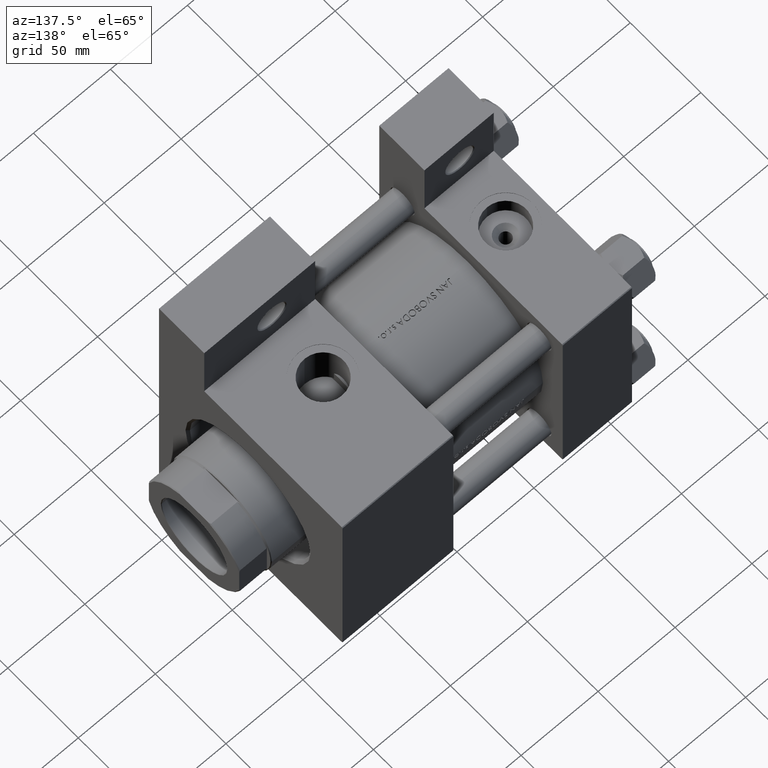
[diagram: clean part render]
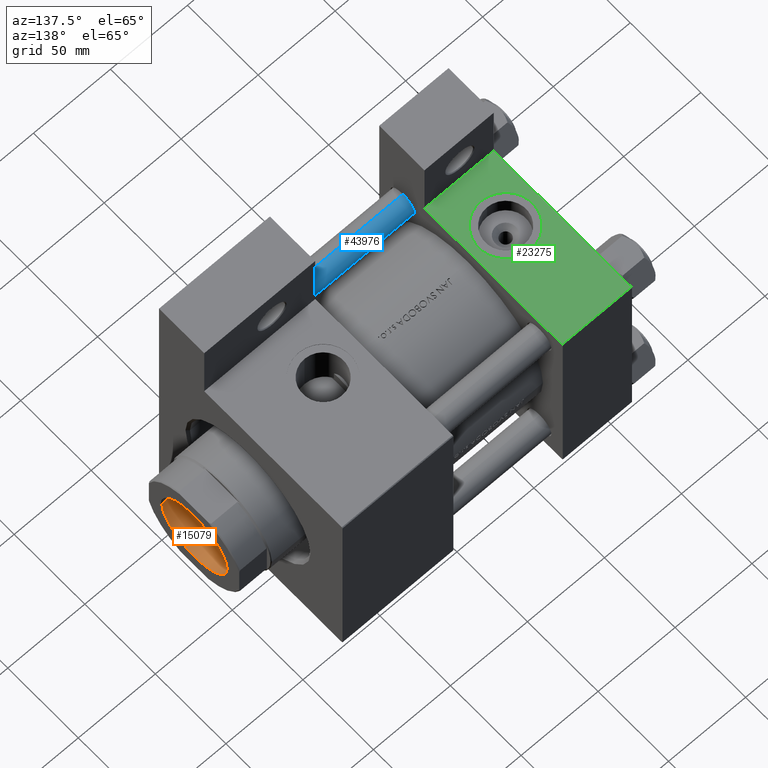
[diagram: same view with three faces highlighted in distinct colors, each labeled with its STEP entity id]
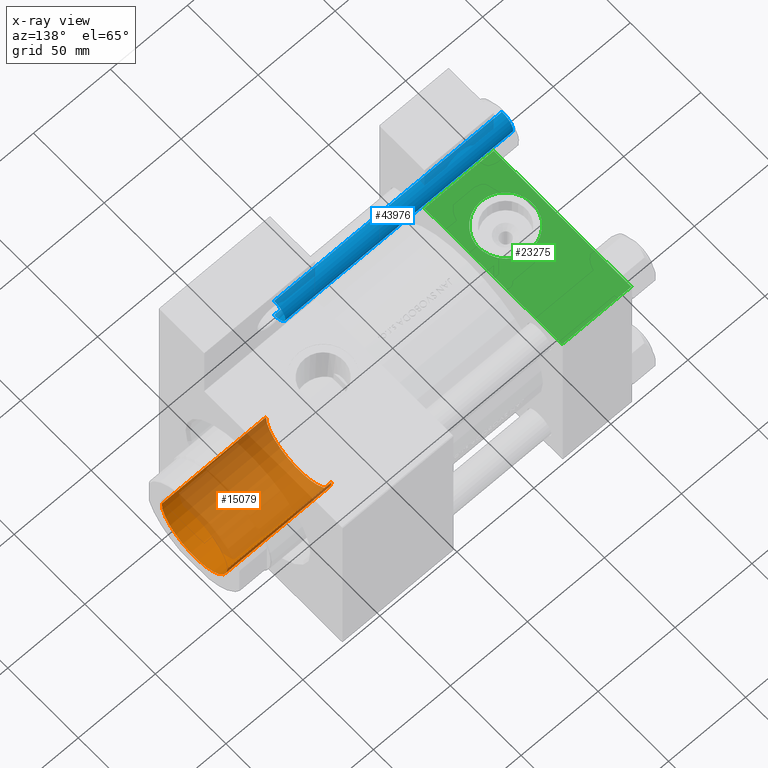
[diagram: x-ray of the same camera — body ghosted, the three highlighted faces saturated]
A machine part, auxiliary view with three faces highlighted in distinct colors.
The next image is the same camera in x-ray (body ghosted, the three faces saturated) — at least one of them is partly hidden behind the body in this view.
Their STEP definitions:

[orange] entity #15079 — the highlighted cylindrical surface (partial cylindrical patch) has radius 23.25 mm, axis along (1, 0, 0).
#539 = CARTESIAN_POINT ( 'NONE',  ( -23.24999999999999289, 2.847303808017595350E-15, 178.0000000000000000 ) ) ;
#775 = DIRECTION ( 'NONE',  ( -0.000000000000000000, -0.000000000000000000, 1.000000000000000000 ) ) ;
#3062 = EDGE_CURVE ( 'NONE', #25279, #35961, #19497, .T. ) ;
#9423 = ORIENTED_EDGE ( 'NONE', *, *, #14238, .T. ) ;
#9739 = ORIENTED_EDGE ( 'NONE', *, *, #30758, .F. ) ;
#10433 = CARTESIAN_POINT ( 'NONE',  ( 0.000000000000000000, 0.000000000000000000, 178.0000000000000000 ) ) ;
#11199 = VECTOR ( 'NONE', #12385, 1000.000000000000000 ) ;
#12001 = CARTESIAN_POINT ( 'NONE',  ( 23.24999999999999289, 0.000000000000000000, 177.7000000000000171 ) ) ;
#12121 = EDGE_LOOP ( 'NONE', ( #9739, #21138, #9423, #41429 ) ) ;
#12385 = DIRECTION ( 'NONE',  ( -0.000000000000000000, -0.000000000000000000, 1.000000000000000000 ) ) ;
#12678 = VERTEX_POINT ( 'NONE', #47787 ) ;
#13175 = AXIS2_PLACEMENT_3D ( 'NONE', #17903, #14006, #40046 ) ;
#14006 = DIRECTION ( 'NONE',  ( 0.000000000000000000, 0.000000000000000000, 1.000000000000000000 ) ) ;
#14238 = EDGE_CURVE ( 'NONE', #45267, #25279, #35250, .T. ) ;
#15079 = ADVANCED_FACE ( 'NONE', ( #28914 ), #47160, .F. ) ;
#16077 = LINE ( 'NONE', #539, #23868 ) ;
#16911 = CARTESIAN_POINT ( 'NONE',  ( 0.000000000000000000, 0.000000000000000000, 109.9999999999999858 ) ) ;
#17903 = CARTESIAN_POINT ( 'NONE',  ( 0.000000000000000000, 0.000000000000000000, 177.7000000000000171 ) ) ;
#19497 = CIRCLE ( 'NONE', #13175, 23.24999999999999289 ) ;
#21138 = ORIENTED_EDGE ( 'NONE', *, *, #32403, .F. ) ;
#23868 = VECTOR ( 'NONE', #775, 1000.000000000000000 ) ;
#25199 = CARTESIAN_POINT ( 'NONE',  ( 23.24999999999998579, 0.000000000000000000, 109.9999999999999858 ) ) ;
#25279 = VERTEX_POINT ( 'NONE', #12001 ) ;
#28670 = DIRECTION ( 'NONE',  ( -0.000000000000000000, -0.000000000000000000, 1.000000000000000000 ) ) ;
#28914 = FACE_OUTER_BOUND ( 'NONE', #12121, .T. ) ;
#30758 = EDGE_CURVE ( 'NONE', #12678, #35961, #16077, .T. ) ;
#30875 = CARTESIAN_POINT ( 'NONE',  ( 23.24999999999999289, 0.000000000000000000, 178.0000000000000000 ) ) ;
#31454 = AXIS2_PLACEMENT_3D ( 'NONE', #10433, #28670, #40116 ) ;
#31761 = DIRECTION ( 'NONE',  ( -0.000000000000000000, -0.000000000000000000, 1.000000000000000000 ) ) ;
#32403 = EDGE_CURVE ( 'NONE', #45267, #12678, #37115, .T. ) ;
#35250 = LINE ( 'NONE', #30875, #11199 ) ;
#35961 = VERTEX_POINT ( 'NONE', #39747 ) ;
#37115 = CIRCLE ( 'NONE', #47194, 23.24999999999998579 ) ;
#39747 = CARTESIAN_POINT ( 'NONE',  ( -23.24999999999999289, 2.847303808017595350E-15, 177.7000000000000171 ) ) ;
#40046 = DIRECTION ( 'NONE',  ( 1.000000000000000000, 0.000000000000000000, 0.000000000000000000 ) ) ;
#40116 = DIRECTION ( 'NONE',  ( 1.000000000000000000, 0.000000000000000000, 0.000000000000000000 ) ) ;
#41429 = ORIENTED_EDGE ( 'NONE', *, *, #3062, .T. ) ;
#45267 = VERTEX_POINT ( 'NONE', #25199 ) ;
#46582 = DIRECTION ( 'NONE',  ( 1.000000000000000000, 0.000000000000000000, 0.000000000000000000 ) ) ;
#47160 = CYLINDRICAL_SURFACE ( 'NONE', #31454, 23.24999999999999289 ) ;
#47194 = AXIS2_PLACEMENT_3D ( 'NONE', #16911, #31761, #46582 ) ;
#47787 = CARTESIAN_POINT ( 'NONE',  ( -23.24999999999998579, 2.847303808017594561E-15, 109.9999999999999858 ) ) ;

[blue] entity #43976 — the highlighted cylindrical surface (edge-blend (fillet) strip) has radius 8 mm, axis along (1, 0, 0).
#2651 = CARTESIAN_POINT ( 'NONE',  ( -8.000000000000000000, 0.000000000000000000, 148.5000000000000000 ) ) ;
#3817 = AXIS2_PLACEMENT_3D ( 'NONE', #22808, #25985, #30103 ) ;
#5956 = EDGE_CURVE ( 'NONE', #32979, #7952, #41818, .T. ) ;
#6761 = EDGE_CURVE ( 'NONE', #32943, #34715, #45543, .T. ) ;
#7952 = VERTEX_POINT ( 'NONE', #28802 ) ;
#8485 = CIRCLE ( 'NONE', #3817, 8.000000000000000000 ) ;
#9062 = CARTESIAN_POINT ( 'NONE',  ( 8.000000000000000000, 9.797174393178825657E-16, 149.0000000000000000 ) ) ;
#9693 = DIRECTION ( 'NONE',  ( 1.000000000000000000, 0.000000000000000000, 0.000000000000000000 ) ) ;
#11654 = DIRECTION ( 'NONE',  ( -0.000000000000000000, -0.000000000000000000, -1.000000000000000000 ) ) ;
#13171 = DIRECTION ( 'NONE',  ( -0.000000000000000000, -0.000000000000000000, -1.000000000000000000 ) ) ;
#17929 = CYLINDRICAL_SURFACE ( 'NONE', #28826, 8.000000000000000000 ) ;
#18395 = CIRCLE ( 'NONE', #31586, 8.000000000000000000 ) ;
#18737 = VECTOR ( 'NONE', #11654, 1000.000000000000000 ) ;
#22808 = CARTESIAN_POINT ( 'NONE',  ( 0.000000000000000000, 0.000000000000000000, 0.5000000000000281997 ) ) ;
#23140 = ORIENTED_EDGE ( 'NONE', *, *, #27874, .T. ) ;
#24055 = DIRECTION ( 'NONE',  ( 0.000000000000000000, 0.000000000000000000, -1.000000000000000000 ) ) ;
#25985 = DIRECTION ( 'NONE',  ( -0.000000000000000000, -0.000000000000000000, 1.000000000000000000 ) ) ;
#27635 = ORIENTED_EDGE ( 'NONE', *, *, #6761, .F. ) ;
#27874 = EDGE_CURVE ( 'NONE', #32943, #32979, #18395, .T. ) ;
#28802 = CARTESIAN_POINT ( 'NONE',  ( -8.000000000000000000, 0.000000000000000000, 0.5000000000000281997 ) ) ;
#28826 = AXIS2_PLACEMENT_3D ( 'NONE', #32779, #47593, #33025 ) ;
#30103 = DIRECTION ( 'NONE',  ( 1.000000000000000000, 0.000000000000000000, 0.000000000000000000 ) ) ;
#31586 = AXIS2_PLACEMENT_3D ( 'NONE', #35497, #24055, #9693 ) ;
#32779 = CARTESIAN_POINT ( 'NONE',  ( 0.000000000000000000, 0.000000000000000000, 149.0000000000000000 ) ) ;
#32943 = VERTEX_POINT ( 'NONE', #38878 ) ;
#32979 = VERTEX_POINT ( 'NONE', #2651 ) ;
#33025 = DIRECTION ( 'NONE',  ( -1.000000000000000000, 0.000000000000000000, 0.000000000000000000 ) ) ;
#34176 = ORIENTED_EDGE ( 'NONE', *, *, #5956, .T. ) ;
#34715 = VERTEX_POINT ( 'NONE', #43687 ) ;
#35497 = CARTESIAN_POINT ( 'NONE',  ( 0.000000000000000000, 0.000000000000000000, 148.5000000000000000 ) ) ;
#37686 = CARTESIAN_POINT ( 'NONE',  ( -8.000000000000000000, 0.000000000000000000, 149.0000000000000000 ) ) ;
#38626 = EDGE_CURVE ( 'NONE', #7952, #34715, #8485, .T. ) ;
#38878 = CARTESIAN_POINT ( 'NONE',  ( 8.000000000000000000, 9.797174393178825657E-16, 148.5000000000000000 ) ) ;
#40310 = FACE_OUTER_BOUND ( 'NONE', #47059, .T. ) ;
#41818 = LINE ( 'NONE', #37686, #18737 ) ;
#42074 = VECTOR ( 'NONE', #13171, 1000.000000000000000 ) ;
#43511 = ORIENTED_EDGE ( 'NONE', *, *, #38626, .T. ) ;
#43687 = CARTESIAN_POINT ( 'NONE',  ( 8.000000000000000000, 9.797174393178825657E-16, 0.5000000000000281997 ) ) ;
#43976 = ADVANCED_FACE ( 'NONE', ( #40310 ), #17929, .T. ) ;
#45543 = LINE ( 'NONE', #9062, #42074 ) ;
#47059 = EDGE_LOOP ( 'NONE', ( #27635, #23140, #34176, #43511 ) ) ;
#47593 = DIRECTION ( 'NONE',  ( -0.000000000000000000, -0.000000000000000000, -1.000000000000000000 ) ) ;

[green] entity #23275 — the highlighted planar face has unit normal (0, 0, -1).
#571 = PLANE ( 'NONE',  #20743 ) ;
#2244 = DIRECTION ( 'NONE',  ( 0.000000000000000000, -1.000000000000000000, -8.673617379884036705E-17 ) ) ;
#2469 = ORIENTED_EDGE ( 'NONE', *, *, #11203, .T. ) ;
#6426 = DIRECTION ( 'NONE',  ( 0.000000000000000000, 0.000000000000000000, -1.000000000000000000 ) ) ;
#8967 = CARTESIAN_POINT ( 'NONE',  ( 45.00000000000000000, -65.00000000000000000, 64.50000000000000000 ) ) ;
#9150 = VERTEX_POINT ( 'NONE', #20167 ) ;
#10688 = DIRECTION ( 'NONE',  ( 0.000000000000000000, 0.000000000000000000, -1.000000000000000000 ) ) ;
#11203 = EDGE_CURVE ( 'NONE', #31534, #11924, #33559, .T. ) ;
#11924 = VERTEX_POINT ( 'NONE', #47174 ) ;
#14515 = DIRECTION ( 'NONE',  ( -1.000000000000000000, 0.000000000000000000, 0.000000000000000000 ) ) ;
#15284 = CARTESIAN_POINT ( 'NONE',  ( 0.000000000000000000, -65.00000000000000000, 65.00000000000000000 ) ) ;
#16030 = VECTOR ( 'NONE', #6426, 1000.000000000000000 ) ;
#16493 = DIRECTION ( 'NONE',  ( 0.000000000000000000, 0.000000000000000000, -1.000000000000000000 ) ) ;
#18595 = EDGE_LOOP ( 'NONE', ( #34544, #27984 ) ) ;
#18798 = DIRECTION ( 'NONE',  ( -0.000000000000000000, 1.000000000000000000, 0.000000000000000000 ) ) ;
#19311 = EDGE_CURVE ( 'NONE', #34575, #9150, #25256, .T. ) ;
#19620 = CARTESIAN_POINT ( 'NONE',  ( 22.50000000000000000, -65.00000000000000000, -17.50000000000000000 ) ) ;
#20167 = CARTESIAN_POINT ( 'NONE',  ( 22.50000000000000355, -65.00000000000000000, 17.50000000000000000 ) ) ;
#20453 = CARTESIAN_POINT ( 'NONE',  ( 22.50000000000000000, -65.00000000000000000, 0.000000000000000000 ) ) ;
#20743 = AXIS2_PLACEMENT_3D ( 'NONE', #29508, #18798, #30215 ) ;
#21341 = DIRECTION ( 'NONE',  ( 0.000000000000000000, -1.000000000000000000, -8.673617379884036705E-17 ) ) ;
#22356 = EDGE_CURVE ( 'NONE', #31166, #24072, #24897, .T. ) ;
#22589 = EDGE_LOOP ( 'NONE', ( #29243, #26296, #46983, #2469 ) ) ;
#23275 = ADVANCED_FACE ( 'NONE', ( #33881, #40466 ), #571, .F. ) ;
#24072 = VERTEX_POINT ( 'NONE', #28613 ) ;
#24766 = AXIS2_PLACEMENT_3D ( 'NONE', #20453, #2244, #30936 ) ;
#24897 = LINE ( 'NONE', #39737, #16030 ) ;
#25256 = CIRCLE ( 'NONE', #31481, 17.50000000000000000 ) ;
#25423 = EDGE_CURVE ( 'NONE', #24072, #11924, #27556, .T. ) ;
#26296 = ORIENTED_EDGE ( 'NONE', *, *, #22356, .F. ) ;
#27556 = LINE ( 'NONE', #39228, #27583 ) ;
#27583 = VECTOR ( 'NONE', #43354, 1000.000000000000000 ) ;
#27681 = CARTESIAN_POINT ( 'NONE',  ( 22.50000000000000000, -65.00000000000000000, 0.000000000000000000 ) ) ;
#27984 = ORIENTED_EDGE ( 'NONE', *, *, #34055, .F. ) ;
#28513 = CARTESIAN_POINT ( 'NONE',  ( 0.000000000000000000, -65.00000000000000000, 64.50000000000000000 ) ) ;
#28613 = CARTESIAN_POINT ( 'NONE',  ( 45.00000000000000000, -65.00000000000000000, -33.00000000000000000 ) ) ;
#29243 = ORIENTED_EDGE ( 'NONE', *, *, #25423, .F. ) ;
#29508 = CARTESIAN_POINT ( 'NONE',  ( 45.00000000000000000, -65.00000000000000000, 65.00000000000000000 ) ) ;
#30215 = DIRECTION ( 'NONE',  ( 0.000000000000000000, -0.000000000000000000, 1.000000000000000000 ) ) ;
#30936 = DIRECTION ( 'NONE',  ( 0.000000000000000000, 0.000000000000000000, -1.000000000000000000 ) ) ;
#31166 = VERTEX_POINT ( 'NONE', #8967 ) ;
#31481 = AXIS2_PLACEMENT_3D ( 'NONE', #27681, #21341, #16493 ) ;
#31534 = VERTEX_POINT ( 'NONE', #28513 ) ;
#33559 = LINE ( 'NONE', #15284, #46053 ) ;
#33881 = FACE_BOUND ( 'NONE', #18595, .T. ) ;
#34055 = EDGE_CURVE ( 'NONE', #9150, #34575, #47259, .T. ) ;
#34544 = ORIENTED_EDGE ( 'NONE', *, *, #19311, .F. ) ;
#34575 = VERTEX_POINT ( 'NONE', #19620 ) ;
#39228 = CARTESIAN_POINT ( 'NONE',  ( 1.020153353658907084E-15, -65.00000000000001421, -33.00000000000000000 ) ) ;
#39571 = CARTESIAN_POINT ( 'NONE',  ( 45.00000000000000000, -65.00000000000000000, 64.50000000000000000 ) ) ;
#39737 = CARTESIAN_POINT ( 'NONE',  ( 45.00000000000000000, -65.00000000000000000, 65.00000000000000000 ) ) ;
#39817 = LINE ( 'NONE', #39571, #47572 ) ;
#40466 = FACE_OUTER_BOUND ( 'NONE', #22589, .T. ) ;
#43354 = DIRECTION ( 'NONE',  ( -1.000000000000000000, 0.000000000000000000, 0.000000000000000000 ) ) ;
#46053 = VECTOR ( 'NONE', #10688, 1000.000000000000000 ) ;
#46983 = ORIENTED_EDGE ( 'NONE', *, *, #47551, .T. ) ;
#47174 = CARTESIAN_POINT ( 'NONE',  ( 1.020153353658907479E-15, -65.00000000000000000, -33.00000000000000000 ) ) ;
#47259 = CIRCLE ( 'NONE', #24766, 17.50000000000000000 ) ;
#47551 = EDGE_CURVE ( 'NONE', #31166, #31534, #39817, .T. ) ;
#47572 = VECTOR ( 'NONE', #14515, 1000.000000000000000 ) ;